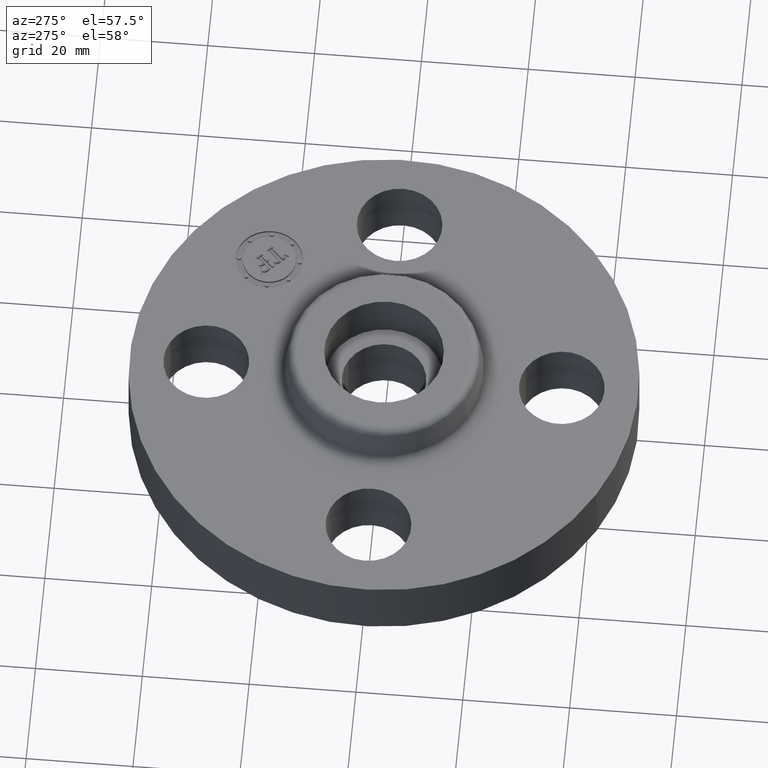
[diagram: clean part render]
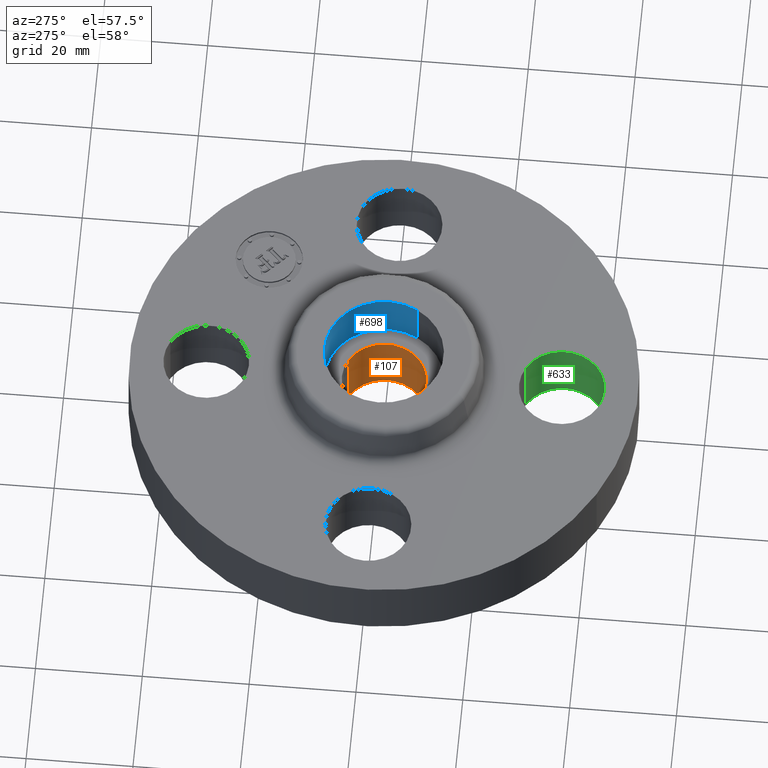
[diagram: same view with three faces highlighted in distinct colors, each labeled with its STEP entity id]
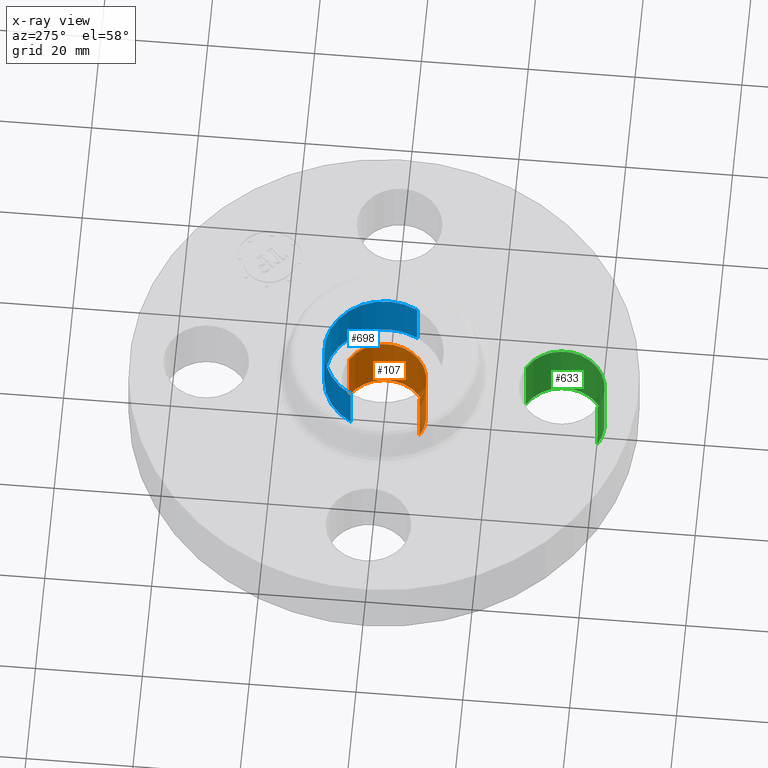
[diagram: x-ray of the same camera — body ghosted, the three highlighted faces saturated]
A machine part, auxiliary view with three faces highlighted in distinct colors.
The next image is the same camera in x-ray (body ghosted, the three faces saturated) — at least one of them is partly hidden behind the body in this view.
Their STEP definitions:

[orange] entity #107 — the highlighted cylindrical surface (partial cylindrical patch) has radius 7.8994 mm, axis along (0, 0, -1).
#69=AXIS2_PLACEMENT_3D('Circle Axis2P3D',#67,#68,$) ;
#80=AXIS2_PLACEMENT_3D('Cylinder Axis2P3D',#77,#78,#79) ;
#91=AXIS2_PLACEMENT_3D('Circle Axis2P3D',#89,#90,$) ;
#62=CARTESIAN_POINT('Vertex',(-0.149101342507,-0.272928176749,0.430000000002)) ;
#64=CARTESIAN_POINT('Vertex',(0.149101342507,0.272928176749,0.430000000002)) ;
#67=CARTESIAN_POINT('Axis2P3D Location',(0.,-2.62257407392E-017,0.430000000002)) ;
#77=CARTESIAN_POINT('Axis2P3D Location',(0.,0.,0.373750000001)) ;
#82=CARTESIAN_POINT('Line Origine',(0.149101342507,0.272928176749,0.183750000001)) ;
#86=CARTESIAN_POINT('Vertex',(0.149101342507,0.272928176749,-0.0625000000003)) ;
#89=CARTESIAN_POINT('Axis2P3D Location',(0.,0.,-0.0625000000003)) ;
#93=CARTESIAN_POINT('Vertex',(-0.149101342507,-0.272928176749,-0.0625000000003)) ;
#96=CARTESIAN_POINT('Line Origine',(-0.149101342507,-0.272928176749,0.183750000001)) ;
#68=DIRECTION('Axis2P3D Direction',(0.,0.,-0.0393700787402)) ;
#78=DIRECTION('Axis2P3D Direction',(0.,0.,-0.0393700787402)) ;
#79=DIRECTION('Axis2P3D XDirection',(-0.0188750212049,-0.0345504945626,0.)) ;
#83=DIRECTION('Vector Direction',(0.,0.,-0.0393700787402)) ;
#90=DIRECTION('Axis2P3D Direction',(0.,0.,-0.0393700787402)) ;
#97=DIRECTION('Vector Direction',(0.,0.,-0.0393700787402)) ;
#84=VECTOR('Line Direction',#83,0.0393700787402) ;
#98=VECTOR('Line Direction',#97,0.0393700787402) ;
#102=ORIENTED_EDGE('',*,*,#88,.T.) ;
#103=ORIENTED_EDGE('',*,*,#95,.T.) ;
#104=ORIENTED_EDGE('',*,*,#100,.F.) ;
#105=ORIENTED_EDGE('',*,*,#71,.F.) ;
#107=ADVANCED_FACE('PartBody',(#106),#81,.F.) ;
#70=CIRCLE('generated circle',#69,0.311000000001) ;
#92=CIRCLE('generated circle',#91,0.311000000001) ;
#81=CYLINDRICAL_SURFACE('generated cylinder',#80,0.311000000001) ;
#71=EDGE_CURVE('',#65,#63,#70,.T.) ;
#88=EDGE_CURVE('',#65,#87,#85,.T.) ;
#95=EDGE_CURVE('',#87,#94,#92,.T.) ;
#100=EDGE_CURVE('',#63,#94,#99,.T.) ;
#101=EDGE_LOOP('',(#102,#103,#104,#105)) ;
#106=FACE_OUTER_BOUND('',#101,.T.) ;
#85=LINE('Line',#82,#84) ;
#99=LINE('Line',#96,#98) ;
#63=VERTEX_POINT('',#62) ;
#65=VERTEX_POINT('',#64) ;
#87=VERTEX_POINT('',#86) ;
#94=VERTEX_POINT('',#93) ;

[blue] entity #698 — the highlighted cylindrical surface (partial cylindrical patch) has radius 11.176 mm, axis along (0, 0, -1).
#42=AXIS2_PLACEMENT_3D('Circle Axis2P3D',#40,#41,$) ;
#488=AXIS2_PLACEMENT_3D('Circle Axis2P3D',#486,#487,$) ;
#680=AXIS2_PLACEMENT_3D('Cylinder Axis2P3D',#677,#678,#679) ;
#40=CARTESIAN_POINT('Axis2P3D Location',(1.39870617276E-016,1.04902962957E-016,0.430000000002)) ;
#44=CARTESIAN_POINT('Vertex',(-0.386136327233,0.210947236987,0.430000000002)) ;
#46=CARTESIAN_POINT('Vertex',(0.386136327233,-0.210947236987,0.430000000002)) ;
#486=CARTESIAN_POINT('Axis2P3D Location',(1.39870617276E-016,1.39870617276E-016,0.810000000003)) ;
#490=CARTESIAN_POINT('Vertex',(-0.386136327233,0.210947236987,0.810000000003)) ;
#492=CARTESIAN_POINT('Vertex',(0.386136327233,-0.210947236987,0.810000000003)) ;
#677=CARTESIAN_POINT('Axis2P3D Location',(1.39870617276E-016,1.04902962957E-016,0.806062992129)) ;
#682=CARTESIAN_POINT('Line Origine',(-0.386136327233,0.210947236987,0.620000000002)) ;
#687=CARTESIAN_POINT('Line Origine',(0.386136327233,-0.210947236987,0.620000000002)) ;
#41=DIRECTION('Axis2P3D Direction',(0.,0.,-0.0393700787402)) ;
#487=DIRECTION('Axis2P3D Direction',(0.,0.,-0.0393700787402)) ;
#678=DIRECTION('Axis2P3D Direction',(0.,0.,-0.0393700787402)) ;
#679=DIRECTION('Axis2P3D XDirection',(0.0345504945626,-0.0188750212049,0.)) ;
#683=DIRECTION('Vector Direction',(0.,0.,-0.0393700787402)) ;
#688=DIRECTION('Vector Direction',(0.,0.,-0.0393700787402)) ;
#684=VECTOR('Line Direction',#683,0.0393700787402) ;
#689=VECTOR('Line Direction',#688,0.0393700787402) ;
#693=ORIENTED_EDGE('',*,*,#494,.F.) ;
#694=ORIENTED_EDGE('',*,*,#686,.F.) ;
#695=ORIENTED_EDGE('',*,*,#48,.T.) ;
#696=ORIENTED_EDGE('',*,*,#691,.T.) ;
#698=ADVANCED_FACE('PartBody',(#697),#681,.F.) ;
#43=CIRCLE('generated circle',#42,0.440000000002) ;
#489=CIRCLE('generated circle',#488,0.440000000002) ;
#681=CYLINDRICAL_SURFACE('generated cylinder',#680,0.440000000002) ;
#48=EDGE_CURVE('',#45,#47,#43,.T.) ;
#494=EDGE_CURVE('',#491,#493,#489,.T.) ;
#686=EDGE_CURVE('',#45,#491,#685,.F.) ;
#691=EDGE_CURVE('',#47,#493,#690,.F.) ;
#692=EDGE_LOOP('',(#693,#694,#695,#696)) ;
#697=FACE_OUTER_BOUND('',#692,.T.) ;
#685=LINE('Line',#682,#684) ;
#690=LINE('Line',#687,#689) ;
#45=VERTEX_POINT('',#44) ;
#47=VERTEX_POINT('',#46) ;
#491=VERTEX_POINT('',#490) ;
#493=VERTEX_POINT('',#492) ;

[green] entity #633 — the highlighted cylindrical surface (partial cylindrical patch) has radius 8.001 mm, axis along (0, -0, -1).
#238=AXIS2_PLACEMENT_3D('Circle Axis2P3D',#236,#237,$) ;
#594=AXIS2_PLACEMENT_3D('Cylinder Axis2P3D',#591,#592,#593) ;
#624=AXIS2_PLACEMENT_3D('Circle Axis2P3D',#622,#623,$) ;
#236=CARTESIAN_POINT('Axis2P3D Location',(-3.49676543189E-017,-1.31000000001,0.)) ;
#240=CARTESIAN_POINT('Vertex',(0.151019044661,-1.03356149301,0.)) ;
#242=CARTESIAN_POINT('Vertex',(-0.151019044661,-1.586438507,0.)) ;
#591=CARTESIAN_POINT('Axis2P3D Location',(-1.99526869207E-016,-1.31000000001,0.496062992128)) ;
#596=CARTESIAN_POINT('Line Origine',(-0.151019044661,-1.586438507,0.250000000001)) ;
#600=CARTESIAN_POINT('Vertex',(-0.151019044661,-1.586438507,0.500000000002)) ;
#603=CARTESIAN_POINT('Line Origine',(0.151019044661,-1.03356149301,0.250000000001)) ;
#607=CARTESIAN_POINT('Vertex',(0.151019044661,-1.03356149301,0.500000000002)) ;
#622=CARTESIAN_POINT('Axis2P3D Location',(-1.99526869207E-016,-1.31000000001,0.500000000002)) ;
#237=DIRECTION('Axis2P3D Direction',(0.,0.,-0.0393700787402)) ;
#592=DIRECTION('Axis2P3D Direction',(0.,-0.,-0.0393700787402)) ;
#593=DIRECTION('Axis2P3D XDirection',(0.0188750212049,0.0345504945626,-0.)) ;
#597=DIRECTION('Vector Direction',(0.,0.,-0.0393700787402)) ;
#604=DIRECTION('Vector Direction',(0.,0.,-0.0393700787402)) ;
#623=DIRECTION('Axis2P3D Direction',(0.,-0.,-0.0393700787402)) ;
#598=VECTOR('Line Direction',#597,0.0393700787402) ;
#605=VECTOR('Line Direction',#604,0.0393700787402) ;
#628=ORIENTED_EDGE('',*,*,#609,.F.) ;
#629=ORIENTED_EDGE('',*,*,#244,.T.) ;
#630=ORIENTED_EDGE('',*,*,#602,.T.) ;
#631=ORIENTED_EDGE('',*,*,#626,.F.) ;
#633=ADVANCED_FACE('PartBody',(#632),#595,.F.) ;
#239=CIRCLE('generated circle',#238,0.315000000001) ;
#625=CIRCLE('generated circle',#624,0.315000000001) ;
#595=CYLINDRICAL_SURFACE('generated cylinder',#594,0.315000000001) ;
#244=EDGE_CURVE('',#241,#243,#239,.T.) ;
#602=EDGE_CURVE('',#243,#601,#599,.F.) ;
#609=EDGE_CURVE('',#241,#608,#606,.F.) ;
#626=EDGE_CURVE('',#608,#601,#625,.T.) ;
#627=EDGE_LOOP('',(#628,#629,#630,#631)) ;
#632=FACE_OUTER_BOUND('',#627,.T.) ;
#599=LINE('Line',#596,#598) ;
#606=LINE('Line',#603,#605) ;
#241=VERTEX_POINT('',#240) ;
#243=VERTEX_POINT('',#242) ;
#601=VERTEX_POINT('',#600) ;
#608=VERTEX_POINT('',#607) ;